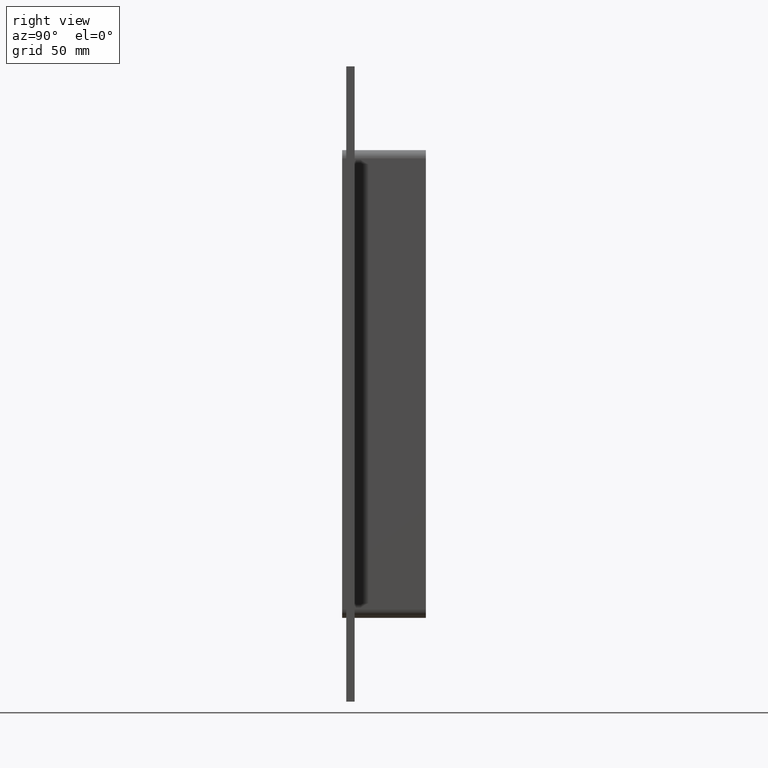
[diagram: clean part render]
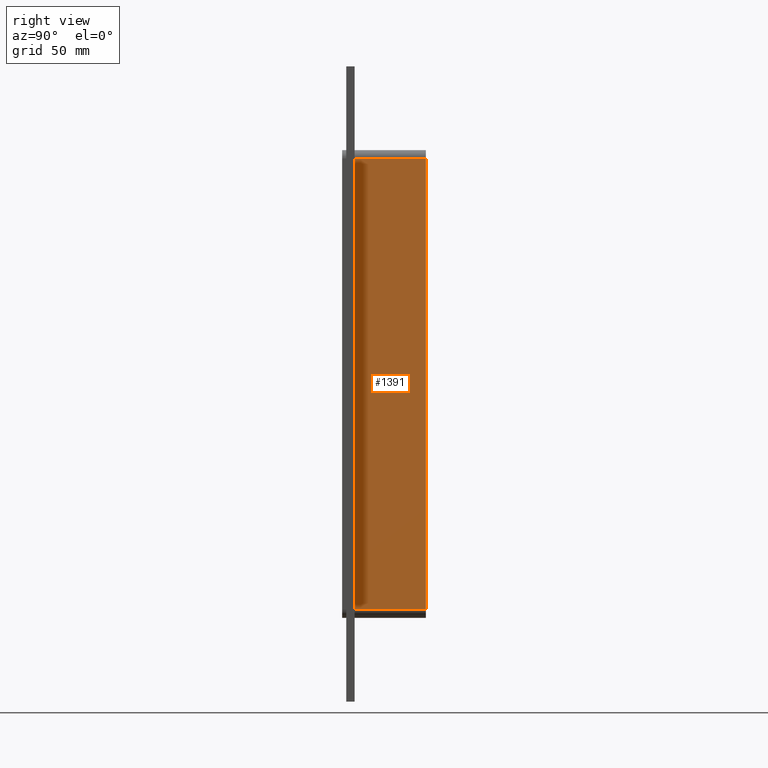
[diagram: same view with one face highlighted and labeled with its STEP entity id]
A machine part, right view. The second image highlights one B-rep face of the part: STEP entity #1391.
In plain terms, the highlighted planar face has unit normal (1, 0, 0).
Its self-contained STEP definition (entity closure, byte-faithful):
#688=CARTESIAN_POINT('',(66.25,6.000000000000001,-161.5));
#689=VERTEX_POINT('',#688);
#697=CARTESIAN_POINT('',(66.25,6.000000000000001,161.5));
#698=VERTEX_POINT('',#697);
#699=CARTESIAN_POINT('',(66.25,6.000000000000001,161.5));
#700=DIRECTION('',(0.0,0.0,-1.0));
#701=VECTOR('',#700,323.0);
#702=LINE('',#699,#701);
#703=EDGE_CURVE('',#698,#689,#702,.T.);
#1002=CARTESIAN_POINT('',(66.25,57.0,-161.5));
#1003=VERTEX_POINT('',#1002);
#1011=CARTESIAN_POINT('',(66.25,57.0,-161.5));
#1012=DIRECTION('',(0.0,-1.0,0.0));
#1013=VECTOR('',#1012,51.0);
#1014=LINE('',#1011,#1013);
#1015=EDGE_CURVE('',#1003,#689,#1014,.T.);
#1356=CARTESIAN_POINT('',(66.25,57.0,161.5));
#1357=VERTEX_POINT('',#1356);
#1358=CARTESIAN_POINT('',(66.25,6.000000000000001,161.5));
#1359=DIRECTION('',(0.0,1.0,0.0));
#1360=VECTOR('',#1359,51.0);
#1361=LINE('',#1358,#1360);
#1362=EDGE_CURVE('',#698,#1357,#1361,.T.);
#1375=CARTESIAN_POINT('',(66.25,0.0,167.5));
#1376=DIRECTION('',(1.0,0.0,0.0));
#1377=DIRECTION('',(0.0,0.0,-1.0));
#1378=AXIS2_PLACEMENT_3D('',#1375,#1376,#1377);
#1379=PLANE('',#1378);
#1380=ORIENTED_EDGE('',*,*,#703,.T.);
#1381=ORIENTED_EDGE('',*,*,#1015,.F.);
#1382=CARTESIAN_POINT('',(66.25,57.0,161.5));
#1383=DIRECTION('',(0.0,0.0,-1.0));
#1384=VECTOR('',#1383,323.0);
#1385=LINE('',#1382,#1384);
#1386=EDGE_CURVE('',#1357,#1003,#1385,.T.);
#1387=ORIENTED_EDGE('',*,*,#1386,.F.);
#1388=ORIENTED_EDGE('',*,*,#1362,.F.);
#1389=EDGE_LOOP('',(#1380,#1381,#1387,#1388));
#1390=FACE_OUTER_BOUND('',#1389,.T.);
#1391=ADVANCED_FACE('',(#1390),#1379,.T.);